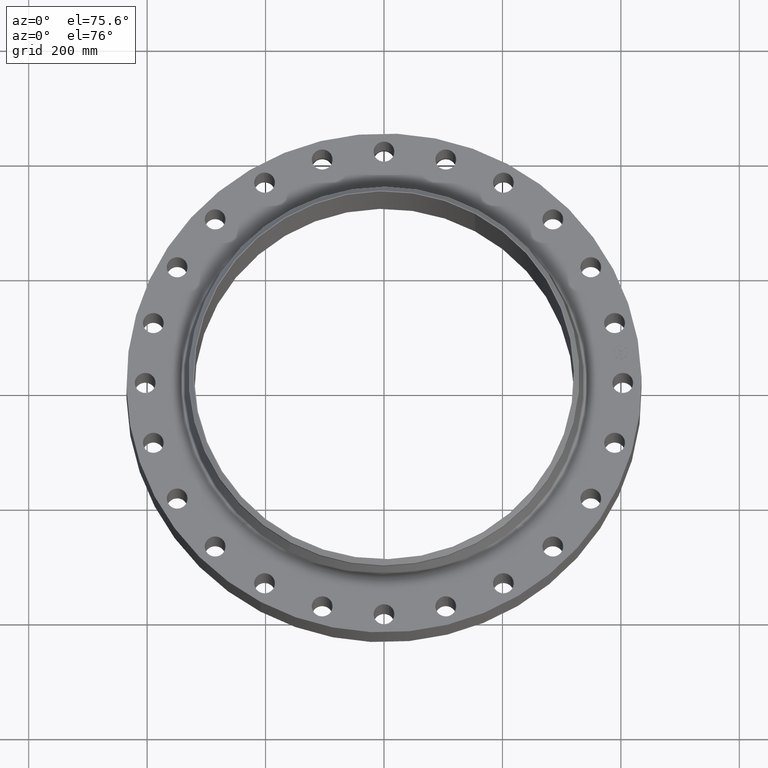
[diagram: clean part render]
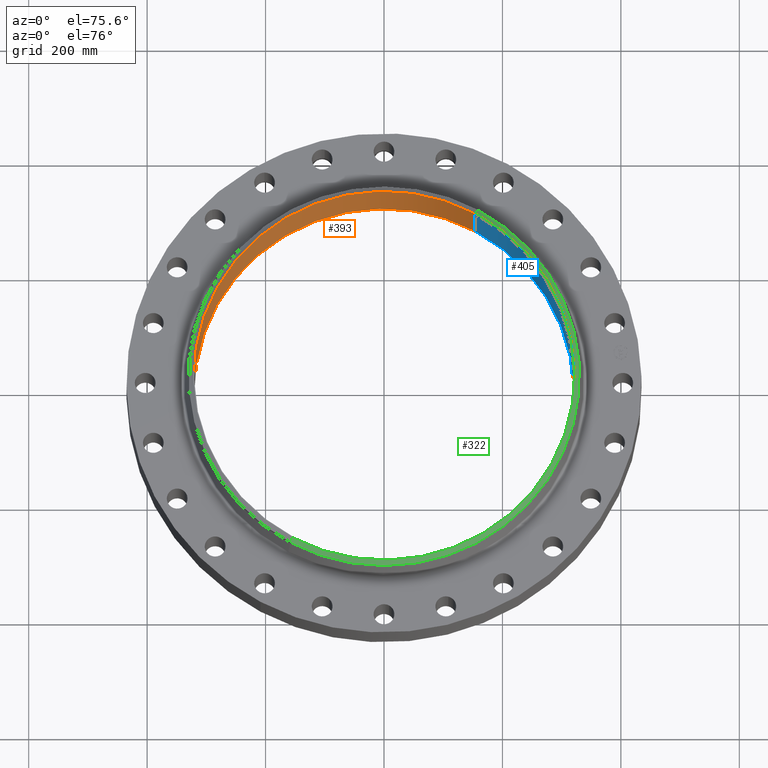
[diagram: same view with three faces highlighted in distinct colors, each labeled with its STEP entity id]
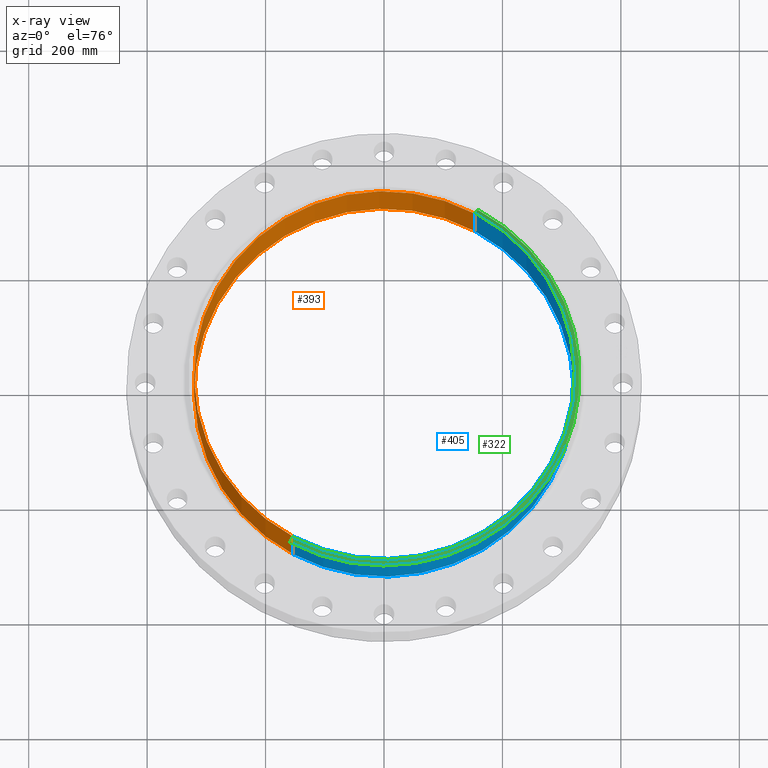
[diagram: x-ray of the same camera — body ghosted, the three highlighted faces saturated]
A machine part, auxiliary view with three faces highlighted in distinct colors.
The next image is the same camera in x-ray (body ghosted, the three faces saturated) — at least one of them is partly hidden behind the body in this view.
Their STEP definitions:

[orange] entity #393 — the highlighted cylindrical surface (partial cylindrical patch) has radius 320.675 mm, axis along (0, 0, -1).
#346=AXIS2_PLACEMENT_3D('Circle Axis2P3D',#344,#345,$) ;
#366=AXIS2_PLACEMENT_3D('Cylinder Axis2P3D',#363,#364,#365) ;
#377=AXIS2_PLACEMENT_3D('Circle Axis2P3D',#375,#376,$) ;
#344=CARTESIAN_POINT('Axis2P3D Location',(-1.1189649382E-015,8.39223703654E-016,4.69000000002)) ;
#348=CARTESIAN_POINT('Vertex',(-6.0527474249,-11.0794798439,4.69000000002)) ;
#350=CARTESIAN_POINT('Vertex',(6.0527474249,11.0794798439,4.69000000002)) ;
#363=CARTESIAN_POINT('Axis2P3D Location',(0.,0.,2.39500000001)) ;
#368=CARTESIAN_POINT('Line Origine',(-6.0527474249,-11.0794798439,2.34500000001)) ;
#372=CARTESIAN_POINT('Vertex',(-6.0527474249,-11.0794798439,-9.23146074019E-015)) ;
#375=CARTESIAN_POINT('Axis2P3D Location',(0.,0.,-1.00706844438E-014)) ;
#379=CARTESIAN_POINT('Vertex',(6.0527474249,11.0794798439,-9.23146074019E-015)) ;
#382=CARTESIAN_POINT('Line Origine',(6.0527474249,11.0794798439,2.34500000001)) ;
#345=DIRECTION('Axis2P3D Direction',(0.,-0.,-0.0393700787402)) ;
#364=DIRECTION('Axis2P3D Direction',(0.,0.,-0.0393700787402)) ;
#365=DIRECTION('Axis2P3D XDirection',(0.0188750212049,0.0345504945626,0.)) ;
#369=DIRECTION('Vector Direction',(0.,0.,-0.0393700787402)) ;
#376=DIRECTION('Axis2P3D Direction',(0.,0.,-0.0393700787402)) ;
#383=DIRECTION('Vector Direction',(0.,0.,-0.0393700787402)) ;
#370=VECTOR('Line Direction',#369,0.0393700787402) ;
#384=VECTOR('Line Direction',#383,0.0393700787402) ;
#388=ORIENTED_EDGE('',*,*,#374,.T.) ;
#389=ORIENTED_EDGE('',*,*,#381,.T.) ;
#390=ORIENTED_EDGE('',*,*,#386,.F.) ;
#391=ORIENTED_EDGE('',*,*,#352,.F.) ;
#393=ADVANCED_FACE('PartBody',(#392),#367,.F.) ;
#347=CIRCLE('generated circle',#346,12.6250000001) ;
#378=CIRCLE('generated circle',#377,12.6250000001) ;
#367=CYLINDRICAL_SURFACE('generated cylinder',#366,12.6250000001) ;
#352=EDGE_CURVE('',#349,#351,#347,.T.) ;
#374=EDGE_CURVE('',#349,#373,#371,.T.) ;
#381=EDGE_CURVE('',#373,#380,#378,.T.) ;
#386=EDGE_CURVE('',#351,#380,#385,.T.) ;
#387=EDGE_LOOP('',(#388,#389,#390,#391)) ;
#392=FACE_OUTER_BOUND('',#387,.T.) ;
#371=LINE('Line',#368,#370) ;
#385=LINE('Line',#382,#384) ;
#349=VERTEX_POINT('',#348) ;
#351=VERTEX_POINT('',#350) ;
#373=VERTEX_POINT('',#372) ;
#380=VERTEX_POINT('',#379) ;

[blue] entity #405 — the highlighted cylindrical surface (partial cylindrical patch) has radius 320.675 mm, axis along (0, 0, -1).
#355=AXIS2_PLACEMENT_3D('Circle Axis2P3D',#353,#354,$) ;
#366=AXIS2_PLACEMENT_3D('Cylinder Axis2P3D',#363,#364,#365) ;
#396=AXIS2_PLACEMENT_3D('Circle Axis2P3D',#394,#395,$) ;
#348=CARTESIAN_POINT('Vertex',(-6.0527474249,-11.0794798439,4.69000000002)) ;
#350=CARTESIAN_POINT('Vertex',(6.0527474249,11.0794798439,4.69000000002)) ;
#353=CARTESIAN_POINT('Axis2P3D Location',(0.,-1.39870617276E-015,4.69000000002)) ;
#363=CARTESIAN_POINT('Axis2P3D Location',(0.,0.,2.39500000001)) ;
#368=CARTESIAN_POINT('Line Origine',(-6.0527474249,-11.0794798439,2.34500000001)) ;
#372=CARTESIAN_POINT('Vertex',(-6.0527474249,-11.0794798439,-9.23146074019E-015)) ;
#379=CARTESIAN_POINT('Vertex',(6.0527474249,11.0794798439,-9.23146074019E-015)) ;
#382=CARTESIAN_POINT('Line Origine',(6.0527474249,11.0794798439,2.34500000001)) ;
#394=CARTESIAN_POINT('Axis2P3D Location',(0.,0.,-1.00706844438E-014)) ;
#354=DIRECTION('Axis2P3D Direction',(0.,-0.,-0.0393700787402)) ;
#364=DIRECTION('Axis2P3D Direction',(0.,0.,-0.0393700787402)) ;
#365=DIRECTION('Axis2P3D XDirection',(0.0188750212049,0.0345504945626,0.)) ;
#369=DIRECTION('Vector Direction',(0.,0.,-0.0393700787402)) ;
#383=DIRECTION('Vector Direction',(0.,0.,-0.0393700787402)) ;
#395=DIRECTION('Axis2P3D Direction',(0.,0.,-0.0393700787402)) ;
#370=VECTOR('Line Direction',#369,0.0393700787402) ;
#384=VECTOR('Line Direction',#383,0.0393700787402) ;
#400=ORIENTED_EDGE('',*,*,#386,.T.) ;
#401=ORIENTED_EDGE('',*,*,#398,.T.) ;
#402=ORIENTED_EDGE('',*,*,#374,.F.) ;
#403=ORIENTED_EDGE('',*,*,#357,.F.) ;
#405=ADVANCED_FACE('PartBody',(#404),#367,.F.) ;
#356=CIRCLE('generated circle',#355,12.6250000001) ;
#397=CIRCLE('generated circle',#396,12.6250000001) ;
#367=CYLINDRICAL_SURFACE('generated cylinder',#366,12.6250000001) ;
#357=EDGE_CURVE('',#351,#349,#356,.T.) ;
#374=EDGE_CURVE('',#349,#373,#371,.T.) ;
#386=EDGE_CURVE('',#351,#380,#385,.T.) ;
#398=EDGE_CURVE('',#380,#373,#397,.T.) ;
#399=EDGE_LOOP('',(#400,#401,#402,#403)) ;
#404=FACE_OUTER_BOUND('',#399,.T.) ;
#371=LINE('Line',#368,#370) ;
#385=LINE('Line',#382,#384) ;
#349=VERTEX_POINT('',#348) ;
#351=VERTEX_POINT('',#350) ;
#373=VERTEX_POINT('',#372) ;
#380=VERTEX_POINT('',#379) ;

[green] entity #322 — the highlighted conical surface has half-angle 52.5 deg.
#270=AXIS2_PLACEMENT_3D('Circle Axis2P3D',#268,#269,$) ;
#295=AXIS2_PLACEMENT_3D('Cone Axis2P3D',#292,#293,#294) ;
#306=AXIS2_PLACEMENT_3D('Circle Axis2P3D',#304,#305,$) ;
#258=CARTESIAN_POINT('Vertex',(-6.23253200188,-11.4085733046,4.45021031627)) ;
#265=CARTESIAN_POINT('Vertex',(6.23253200188,11.4085733046,4.45021031627)) ;
#268=CARTESIAN_POINT('Axis2P3D Location',(0.,0.,4.45021031627)) ;
#292=CARTESIAN_POINT('Axis2P3D Location',(0.,0.,4.69000000002)) ;
#297=CARTESIAN_POINT('Line Origine',(6.15762176147,11.2714510293,4.57010515815)) ;
#301=CARTESIAN_POINT('Vertex',(6.08271152107,11.134328754,4.69000000002)) ;
#304=CARTESIAN_POINT('Axis2P3D Location',(0.,0.,4.69000000002)) ;
#308=CARTESIAN_POINT('Vertex',(-6.08271152107,-11.134328754,4.69000000002)) ;
#311=CARTESIAN_POINT('Line Origine',(-6.15762176147,-11.2714510293,4.57010515815)) ;
#269=DIRECTION('Axis2P3D Direction',(0.,0.,-0.0393700787402)) ;
#293=DIRECTION('Axis2P3D Direction',(-0.,-0.,-0.0393700787402)) ;
#294=DIRECTION('Axis2P3D XDirection',(-0.0188750212049,-0.0345504945626,0.)) ;
#298=DIRECTION('Vector Direction',(0.014974561121,0.02741075027,-0.023966985394)) ;
#305=DIRECTION('Axis2P3D Direction',(0.,-0.,-0.0393700787402)) ;
#312=DIRECTION('Vector Direction',(-0.014974561121,-0.02741075027,-0.023966985394)) ;
#299=VECTOR('Line Direction',#298,0.0393700787402) ;
#313=VECTOR('Line Direction',#312,0.0393700787402) ;
#317=ORIENTED_EDGE('',*,*,#303,.F.) ;
#318=ORIENTED_EDGE('',*,*,#310,.T.) ;
#319=ORIENTED_EDGE('',*,*,#315,.T.) ;
#320=ORIENTED_EDGE('',*,*,#272,.F.) ;
#322=ADVANCED_FACE('PartBody',(#321),#296,.T.) ;
#271=CIRCLE('generated circle',#270,13.0000000001) ;
#307=CIRCLE('generated circle',#306,12.6875000001) ;
#296=CONICAL_SURFACE('Cone',#295,12.6875000001,0.916297857297) ;
#272=EDGE_CURVE('',#266,#259,#271,.T.) ;
#303=EDGE_CURVE('',#302,#266,#300,.T.) ;
#310=EDGE_CURVE('',#302,#309,#307,.T.) ;
#315=EDGE_CURVE('',#309,#259,#314,.T.) ;
#316=EDGE_LOOP('',(#317,#318,#319,#320)) ;
#321=FACE_OUTER_BOUND('',#316,.T.) ;
#300=LINE('Line',#297,#299) ;
#314=LINE('Line',#311,#313) ;
#259=VERTEX_POINT('',#258) ;
#266=VERTEX_POINT('',#265) ;
#302=VERTEX_POINT('',#301) ;
#309=VERTEX_POINT('',#308) ;